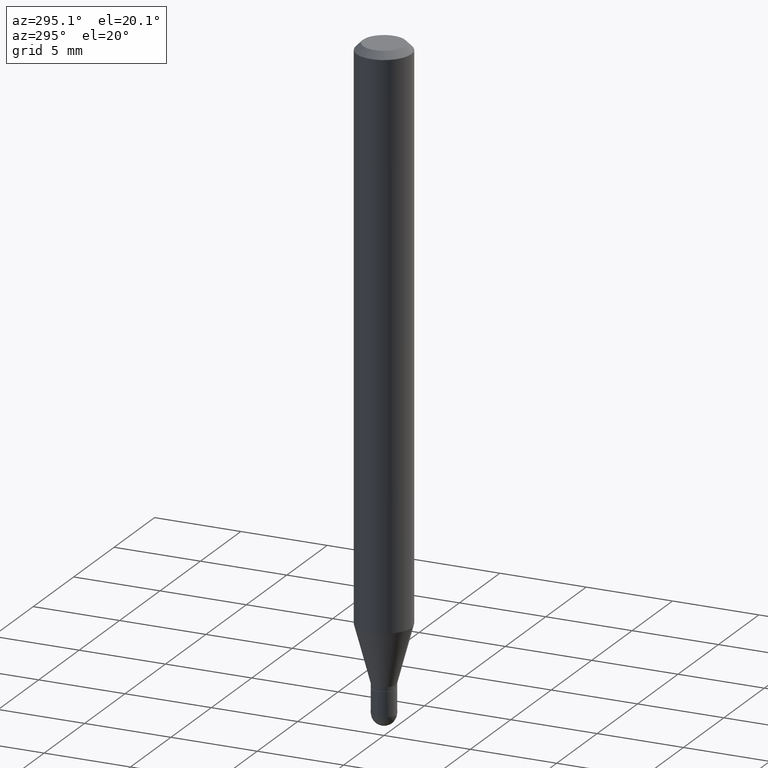
[diagram: clean part render]
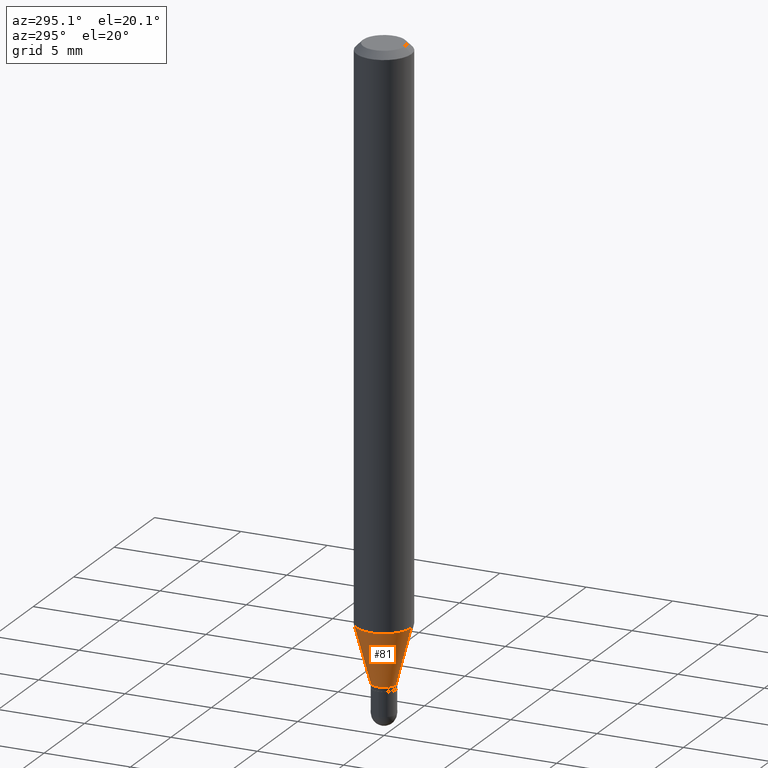
[diagram: same view with one face highlighted and labeled with its STEP entity id]
A machine part, auxiliary view. The second image highlights one B-rep face of the part: STEP entity #81.
In plain terms, the highlighted conical surface has half-angle 15 deg.
Its self-contained STEP definition (entity closure, byte-faithful):
#20 = ORIENTED_EDGE ( 'NONE', *, *, #276, .F. ) ;
#24 = CARTESIAN_POINT ( 'NONE',  ( 3.440784576139787326E-29, -4.912499972106071714E-15, -1.407000000000000028 ) ) ;
#47 = CIRCLE ( 'NONE', #357, 0.06250000000000000000 ) ;
#50 = ORIENTED_EDGE ( 'NONE', *, *, #386, .T. ) ;
#81 = ADVANCED_FACE ( 'NONE', ( #149 ), #104, .T. ) ;
#85 = VERTEX_POINT ( 'NONE', #501 ) ;
#100 = VERTEX_POINT ( 'NONE', #352 ) ;
#104 = CONICAL_SURFACE ( 'NONE', #227, 0.02749999999999992381, 0.2617993877991502960 ) ;
#121 = DIRECTION ( 'NONE',  ( -1.807323732225330928E-15, -0.2588190451025182970, 0.9659258262890689783 ) ) ;
#127 = EDGE_LOOP ( 'NONE', ( #215, #325, #50, #20 ) ) ;
#138 = DIRECTION ( 'NONE',  ( -2.445475889225150789E-29, 3.491471195526703587E-15, 1.000000000000000000 ) ) ;
#149 = FACE_OUTER_BOUND ( 'NONE', #127, .T. ) ;
#157 = LINE ( 'NONE', #165, #201 ) ;
#165 = CARTESIAN_POINT ( 'NONE',  ( 1.953992523340613745E-16, 0.02749999999999501107, -1.407000000000000028 ) ) ;
#174 = VERTEX_POINT ( 'NONE', #240 ) ;
#190 = CARTESIAN_POINT ( 'NONE',  ( 3.440784576139787326E-29, -4.912499972106071714E-15, -1.407000000000000028 ) ) ;
#191 = VECTOR ( 'NONE', #121, 39.37007874015748143 ) ;
#197 = DIRECTION ( 'NONE',  ( -2.445475889225150789E-29, 3.491471195526703587E-15, 1.000000000000000000 ) ) ;
#201 = VECTOR ( 'NONE', #480, 39.37007874015748143 ) ;
#205 = CARTESIAN_POINT ( 'NONE',  ( -1.920314736363373880E-16, -0.02750000000000483655, -1.407000000000000028 ) ) ;
#215 = ORIENTED_EDGE ( 'NONE', *, *, #326, .F. ) ;
#218 = DIRECTION ( 'NONE',  ( -6.982962677686265922E-15, -1.000000000000000000, 0.000000000000000000 ) ) ;
#227 = AXIS2_PLACEMENT_3D ( 'NONE', #190, #197, #466 ) ;
#240 = CARTESIAN_POINT ( 'NONE',  ( 4.440892098500934804E-16, 0.06249999999999551054, -1.276378221735089857 ) ) ;
#276 = EDGE_CURVE ( 'NONE', #174, #85, #47, .T. ) ;
#319 = AXIS2_PLACEMENT_3D ( 'NONE', #24, #138, #218 ) ;
#325 = ORIENTED_EDGE ( 'NONE', *, *, #418, .T. ) ;
#326 = EDGE_CURVE ( 'NONE', #100, #174, #157, .T. ) ;
#333 = CIRCLE ( 'NONE', #319, 0.02749999999999992381 ) ;
#352 = CARTESIAN_POINT ( 'NONE',  ( 3.197442310920775630E-16, 0.02749999999999501107, -1.407000000000000028 ) ) ;
#357 = AXIS2_PLACEMENT_3D ( 'NONE', #372, #360, #482 ) ;
#360 = DIRECTION ( 'NONE',  ( -2.445475889225150789E-29, 3.491471195526703587E-15, 1.000000000000000000 ) ) ;
#372 = CARTESIAN_POINT ( 'NONE',  ( 3.121352166785234497E-29, -4.456437795785661971E-15, -1.276378221735089635 ) ) ;
#386 = EDGE_CURVE ( 'NONE', #413, #85, #437, .T. ) ;
#413 = VERTEX_POINT ( 'NONE', #491 ) ;
#418 = EDGE_CURVE ( 'NONE', #100, #413, #333, .T. ) ;
#437 = LINE ( 'NONE', #205, #191 ) ;
#466 = DIRECTION ( 'NONE',  ( -6.982962677686265922E-15, -1.000000000000000000, 0.000000000000000000 ) ) ;
#480 = DIRECTION ( 'NONE',  ( 1.839019923739601104E-15, 0.2588190451025250693, 0.9659258262890670910 ) ) ;
#482 = DIRECTION ( 'NONE',  ( -6.982962677686265922E-15, -1.000000000000000000, 4.370956789862821150E-15 ) ) ;
#491 = CARTESIAN_POINT ( 'NONE',  ( -1.920314736363373880E-16, -0.02750000000000483655, -1.407000000000000028 ) ) ;
#501 = CARTESIAN_POINT ( 'NONE',  ( -4.364351673553605587E-16, -0.06250000000000446865, -1.276378221735089191 ) ) ;